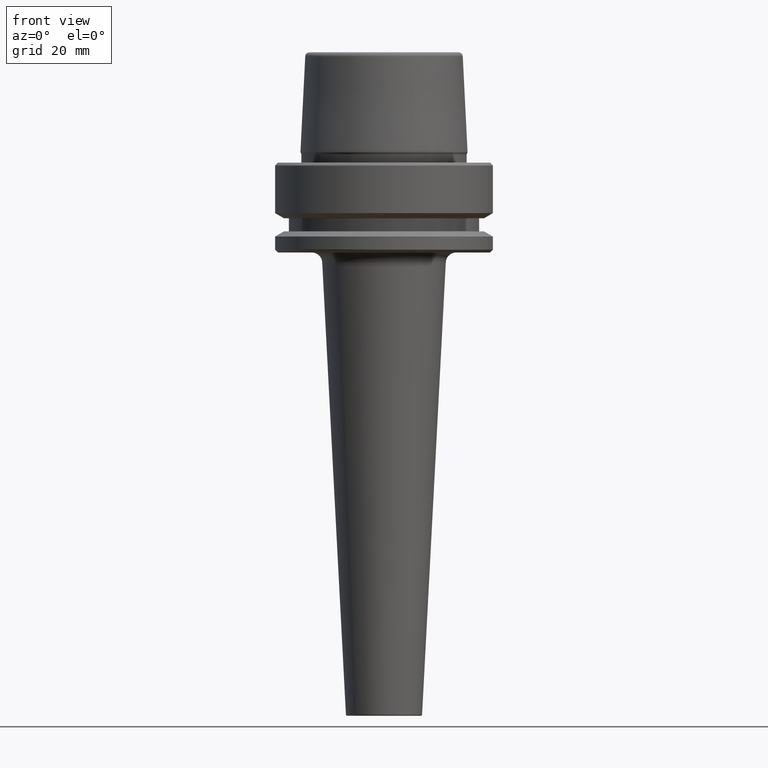
[diagram: clean part render]
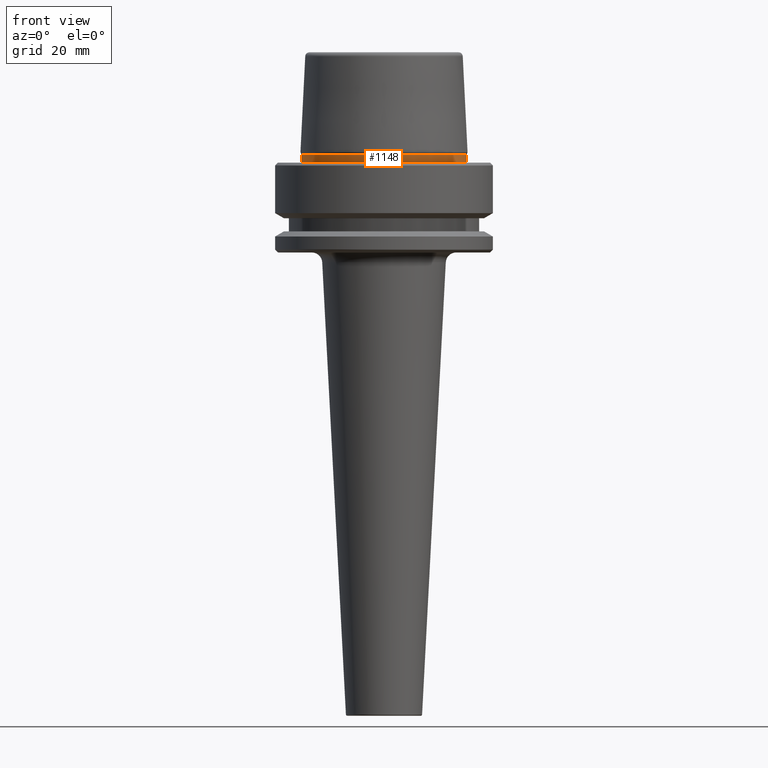
[diagram: same view with one face highlighted and labeled with its STEP entity id]
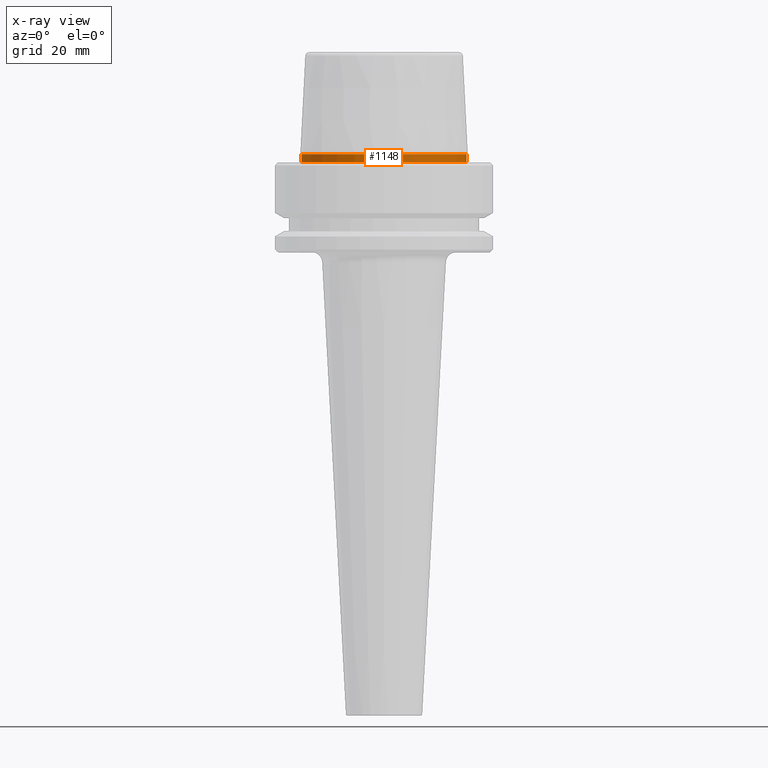
[diagram: x-ray of the same camera — body ghosted, the highlighted face saturated]
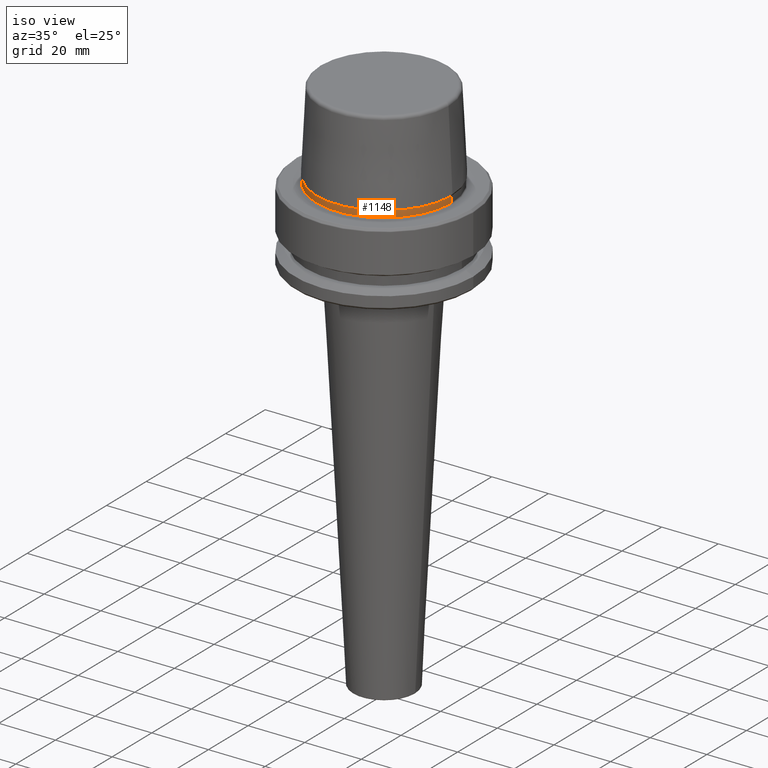
[diagram: same view with one face highlighted and labeled with its STEP entity id]
A machine part, front view. The second image highlights one B-rep face of the part: STEP entity #1148.
The next image is the same camera in x-ray: the body ghosted, the highlighted face saturated — about 0% of this face is hidden behind the body in this view.
A second angle (iso view) of the same face is appended — the face is thin or edge-on in the first view.
In plain terms, the highlighted cylindrical surface (partial cylindrical patch) has radius 23.89 mm, axis along (-0, -0, 1).
Its self-contained STEP definition (entity closure, byte-faithful):
#144 = FACE_OUTER_BOUND ( 'NONE', #634, .T. ) ;
#147 = AXIS2_PLACEMENT_3D ( 'NONE', #619, #783, #408 ) ;
#159 = VECTOR ( 'NONE', #576, 1000.000000000000000 ) ;
#191 = DIRECTION ( 'NONE',  ( 1.000000000000000000, 0.0000000000000000000, 0.0000000000000000000 ) ) ;
#212 = VERTEX_POINT ( 'NONE', #279 ) ;
#226 = ORIENTED_EDGE ( 'NONE', *, *, #766, .T. ) ;
#227 = AXIS2_PLACEMENT_3D ( 'NONE', #354, #453, #1000 ) ;
#232 = VERTEX_POINT ( 'NONE', #736 ) ;
#243 = AXIS2_PLACEMENT_3D ( 'NONE', #402, #352, #191 ) ;
#257 = VERTEX_POINT ( 'NONE', #936 ) ;
#279 = CARTESIAN_POINT ( 'NONE',  ( 23.89000000000000100, 0.0000000000000000000, 2.398838415132276100 ) ) ;
#280 = EDGE_CURVE ( 'NONE', #232, #212, #1162, .T. ) ;
#305 = EDGE_CURVE ( 'NONE', #930, #232, #887, .T. ) ;
#352 = DIRECTION ( 'NONE',  ( -0.0000000000000000000, -0.0000000000000000000, 1.000000000000000000 ) ) ;
#354 = CARTESIAN_POINT ( 'NONE',  ( 0.0000000000000000000, 0.0000000000000000000, 0.1312552021302954000 ) ) ;
#361 = CARTESIAN_POINT ( 'NONE',  ( 23.89000000000000100, 0.0000000000000000000, 78.96908074195309300 ) ) ;
#370 = CARTESIAN_POINT ( 'NONE',  ( -23.89000000000000100, 2.925681203163027000E-015, 78.96908074195309300 ) ) ;
#402 = CARTESIAN_POINT ( 'NONE',  ( 0.0000000000000000000, 0.0000000000000000000, 78.96908074195309300 ) ) ;
#408 = DIRECTION ( 'NONE',  ( 1.000000000000000000, 0.0000000000000000000, 0.0000000000000000000 ) ) ;
#433 = EDGE_CURVE ( 'NONE', #257, #212, #1107, .T. ) ;
#447 = ORIENTED_EDGE ( 'NONE', *, *, #305, .F. ) ;
#453 = DIRECTION ( 'NONE',  ( -0.0000000000000000000, -0.0000000000000000000, 1.000000000000000000 ) ) ;
#470 = CYLINDRICAL_SURFACE ( 'NONE', #243, 23.89000000000000100 ) ;
#576 = DIRECTION ( 'NONE',  ( -0.0000000000000000000, -0.0000000000000000000, 1.000000000000000000 ) ) ;
#602 = DIRECTION ( 'NONE',  ( -0.0000000000000000000, -0.0000000000000000000, 1.000000000000000000 ) ) ;
#619 = CARTESIAN_POINT ( 'NONE',  ( 0.0000000000000000000, 0.0000000000000000000, 2.398838415132276100 ) ) ;
#634 = EDGE_LOOP ( 'NONE', ( #447, #226, #721, #1124 ) ) ;
#721 = ORIENTED_EDGE ( 'NONE', *, *, #433, .T. ) ;
#736 = CARTESIAN_POINT ( 'NONE',  ( -23.89000000000000100, 2.942846235451747500E-015, 2.398838415132276100 ) ) ;
#766 = EDGE_CURVE ( 'NONE', #930, #257, #791, .T. ) ;
#771 = CARTESIAN_POINT ( 'NONE',  ( -23.89000000000000400, 2.961613815265650600E-015, 0.1312552021302954000 ) ) ;
#783 = DIRECTION ( 'NONE',  ( -0.0000000000000000000, -0.0000000000000000000, 1.000000000000000000 ) ) ;
#791 = CIRCLE ( 'NONE', #227, 23.89000000000000400 ) ;
#887 = LINE ( 'NONE', #370, #1035 ) ;
#930 = VERTEX_POINT ( 'NONE', #771 ) ;
#936 = CARTESIAN_POINT ( 'NONE',  ( 23.89000000000000400, 0.0000000000000000000, 0.1312552021302954000 ) ) ;
#1000 = DIRECTION ( 'NONE',  ( 1.000000000000000000, 0.0000000000000000000, 0.0000000000000000000 ) ) ;
#1035 = VECTOR ( 'NONE', #602, 1000.000000000000000 ) ;
#1107 = LINE ( 'NONE', #361, #159 ) ;
#1124 = ORIENTED_EDGE ( 'NONE', *, *, #280, .F. ) ;
#1148 = ADVANCED_FACE ( 'NONE', ( #144 ), #470, .T. ) ;
#1162 = CIRCLE ( 'NONE', #147, 23.89000000000000100 ) ;